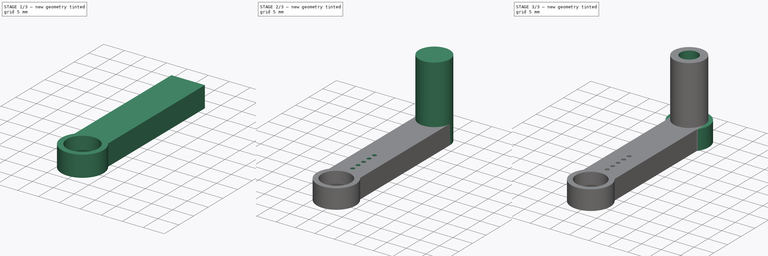
[diagram: build sequence overview — one tinted view per stage of 3, left to right]
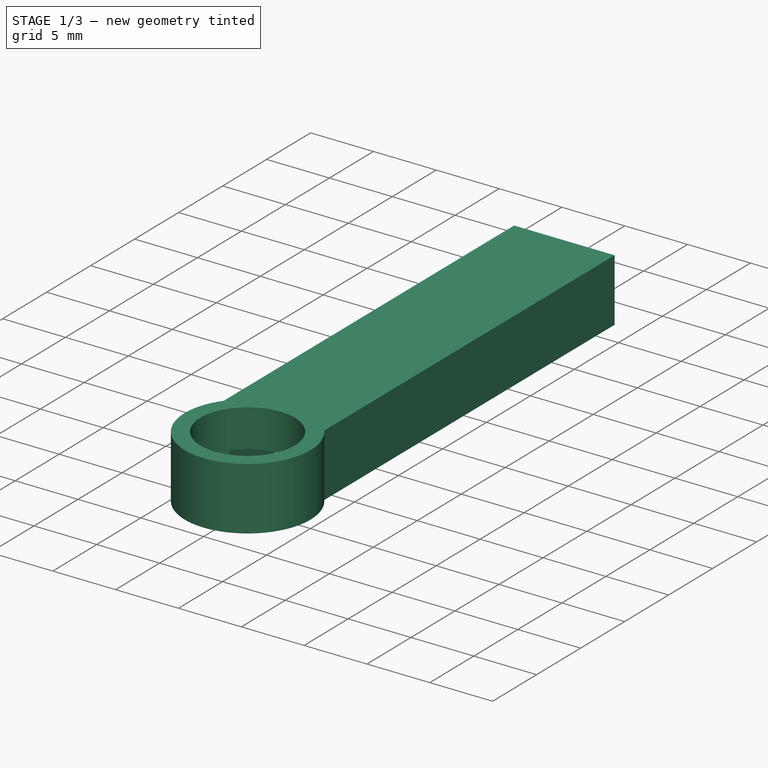
[diagram: stage 1 of 3 — iso view after this stage's code; geometry added in this stage tinted green]
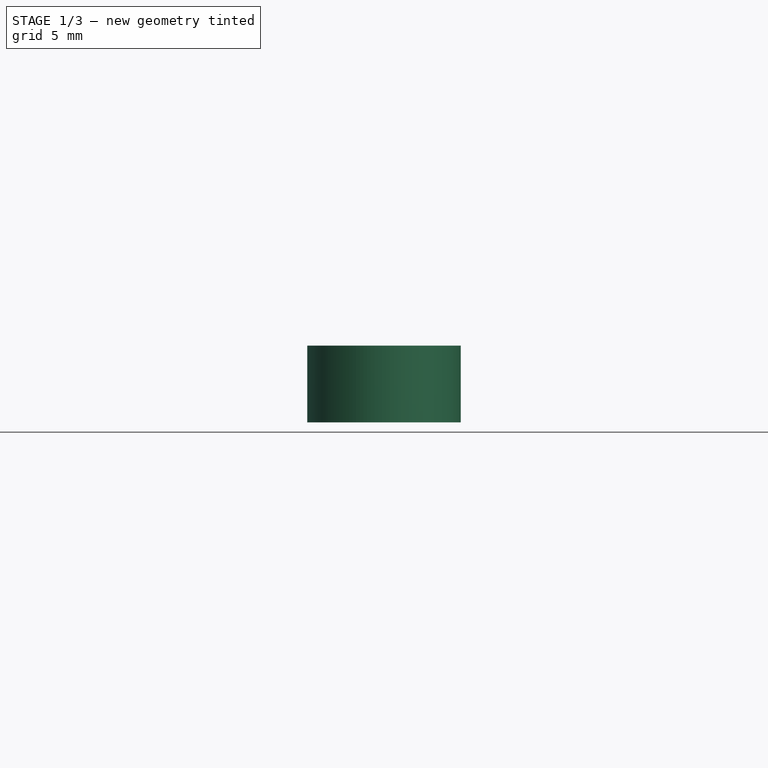
[diagram: stage 1 of 3 — front view after this stage's code; geometry added in this stage tinted green]
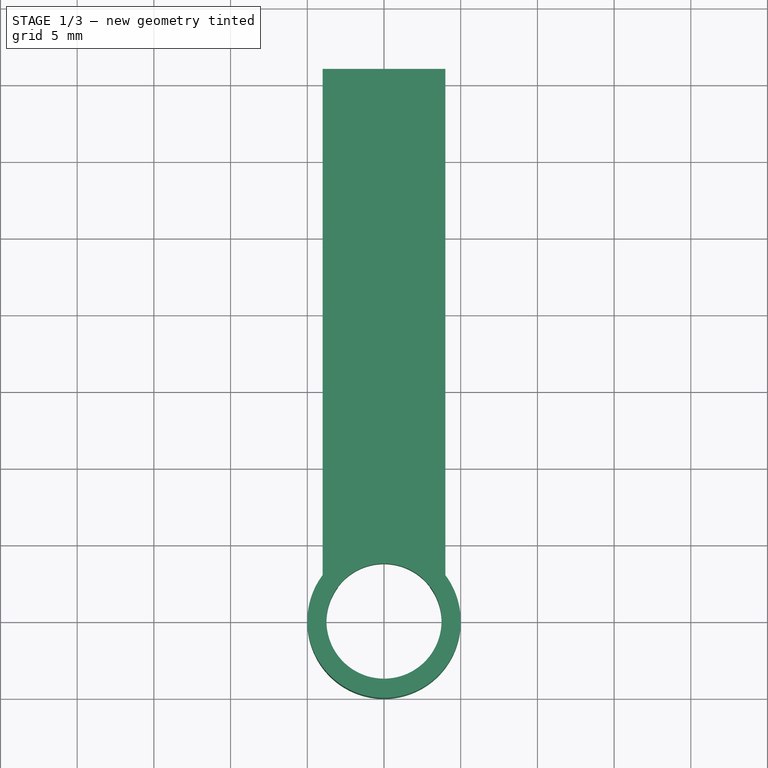
[diagram: stage 1 of 3 — top view after this stage's code; geometry added in this stage tinted green]
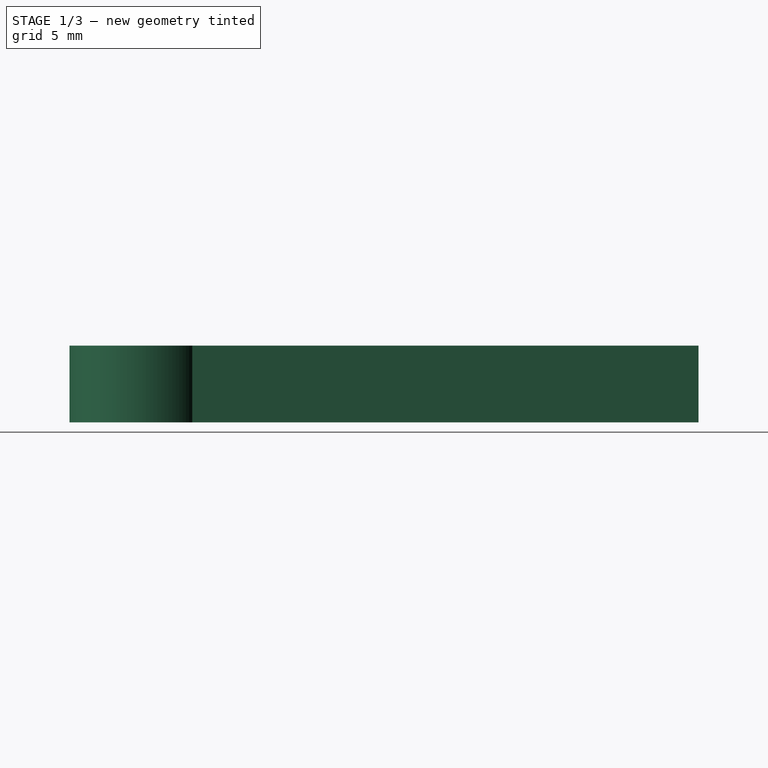
[diagram: stage 1 of 3 — right view after this stage's code; geometry added in this stage tinted green]
FCSTD DOCUMENT  (FreeCAD 1.0R38641 +678 (Git))
Label: lever
License: All rights reserved
LicenseURL: https://en.wikipedia.org/wiki/All_rights_reserved
objects: Sketcher::SketchObject×8, PartDesign::Pad×4, PartDesign::Pocket×4, PartDesign::Body×1
note: 41 computed .brp shape members not serialized (recipe doc carries the construction recipe); baked Part::Feature solids carry a one-line shape summary decoded from their .brp

FEATURE [Sketcher::SketchObject] Sketch066
  ArcFitTolerance = 0
  AttachmentSupport = -> [XY_Plane009]
  FullyConstrained = true
  MakeInternals = false
  MapMode = 5
  sketch-geometry (8):
    g0: ArcOfCircle CenterX=0 CenterY=0 CenterZ=0 NormalX=0 NormalY=0 NormalZ=1 AngleXU=0 Radius=3.75 StartAngle=2.49809 EndAngle=6.92669
    g1: ArcOfCircle CenterX=0 CenterY=14 CenterZ=0 NormalX=0 NormalY=0 NormalZ=1 AngleXU=0 Radius=2.5 StartAngle=8.05833e-06 EndAngle=3.14159
    g2: LineSegment StartX=-3 StartY=2.25 StartZ=0 EndX=-2.5 EndY=14 EndZ=0
    g3: LineSegment StartX=3 StartY=2.25 StartZ=0 EndX=2.5 EndY=14 EndZ=0
    g4: ArcOfCircle CenterX=0 CenterY=0 CenterZ=0 NormalX=0 NormalY=0 NormalZ=1 AngleXU=0 Radius=5 StartAngle=2.49809 EndAngle=6.92669
    g5: LineSegment StartX=-4 StartY=3 StartZ=0 EndX=-4 EndY=36 EndZ=0
    g6: LineSegment StartX=4 StartY=3 StartZ=0 EndX=4 EndY=36 EndZ=0
    g7: LineSegment StartX=-4 StartY=36 StartZ=0 EndX=4 EndY=36 EndZ=0
  constraints (25):
    c: Coincident(g0,g-1)
    c: Diameter(g0) = 7.5
    c: PointOnObject(g1,g-2)
    c: Diameter(g1) = 5
    c: DistanceX(g-2,g2) = -2.5
    c: DistanceX(g-2,g3) = 3
    c: DistanceX(g-2,g2) = -3
    c: Coincident(g0,g3)
    c: Coincident(g0,g2)
    c: Coincident(g1,g2)
    c: Coincident(g1,g3)
    c: DistanceY(g-1,g1) = 14
    c: DistanceX(g-2,g1) = 2.5
    c: Coincident(g4,g0)
    c: Diameter(g4) = 10
    c: Vertical(g5)
    c: Vertical(g6)
    c: Coincident(g7,g5)
    c: Coincident(g7,g6)
    c: Horizontal(g7)
    c: Coincident(g6,g4)
    c: Coincident(g5,g4)
    c: DistanceX(g7,g7) = 8
    c: Distance(g0,g7) = 36
    c: Distance(g0,g5) = 4
FEATURE [PartDesign::Pad] Pad025
  Direction = (0,0,1)
  Length = 5
  Length2 = 10
  Profile = -> Sketch066
  ReferenceAxis = -> Sketch066 [N_Axis]
  Suppressed = false
  Type = 0
FEATURE [Sketcher::SketchObject] Sketch067
  ArcFitTolerance = 0
  AttachmentSupport = -> [Pad025]
  FullyConstrained = true
  MakeInternals = false
  MapMode = 5
  Placement = pos=(0,0,5) rot=(0,0,1;0rad)
  sketch-geometry (4):
    g0: LineSegment StartX=-4 StartY=19 StartZ=0 EndX=4 EndY=19 EndZ=0
    g1: LineSegment StartX=4 StartY=19 StartZ=0 EndX=4 EndY=1 EndZ=0
    g2: LineSegment StartX=4 StartY=1 StartZ=0 EndX=-4 EndY=1 EndZ=0
    g3: LineSegment StartX=-4 StartY=1 StartZ=0 EndX=-4 EndY=19 EndZ=0
  constraints (12):
    c: Coincident(g0,g1)
    c: Coincident(g1,g2)
    c: Coincident(g2,g3)
    c: Coincident(g3,g0)
    c: Horizontal(g0)
    c: Horizontal(g2)
    c: Vertical(g1)
    c: Vertical(g3)
    c: DistanceY(g1,g1) = 18
    c: Distance(g0) = 8
    c: Distance(g-1,g2) = 1
    c: Distance(g-1,g3) = 4
FEATURE [PartDesign::Pad] Pad026
  BaseFeature = -> Pad025
  Direction = (0,0,1)
  Length = 3
  Length2 = 10
  Profile = -> Sketch067
  ReferenceAxis = -> Sketch067 [N_Axis]
  Reversed = true
  Suppressed = false
  Type = 0
FEATURE [Sketcher::SketchObject] Sketch068
  ArcFitTolerance = 0
  AttachmentSupport = -> [Pad026]
  FullyConstrained = true
  MakeInternals = false
  MapMode = 5
  Placement = pos=(0,0,5) rot=(0,0,1;0rad)
  sketch-geometry (1):
    g0: Circle CenterX=0 CenterY=0 CenterZ=0 NormalX=0 NormalY=0 NormalZ=1 AngleXU=0 Radius=3.75
  constraints (2):
    c: Coincident(g0,g-1)
    c: Diameter(g0) = 7.5
FEATURE [PartDesign::Pocket] Pocket024
  BaseFeature = -> Pad026
  Direction = (0,0,-1)
  Length = 5
  Length2 = 5
  Profile = -> Sketch068
  ReferenceAxis = -> Sketch068 [N_Axis]
  Suppressed = false
  Type = 0
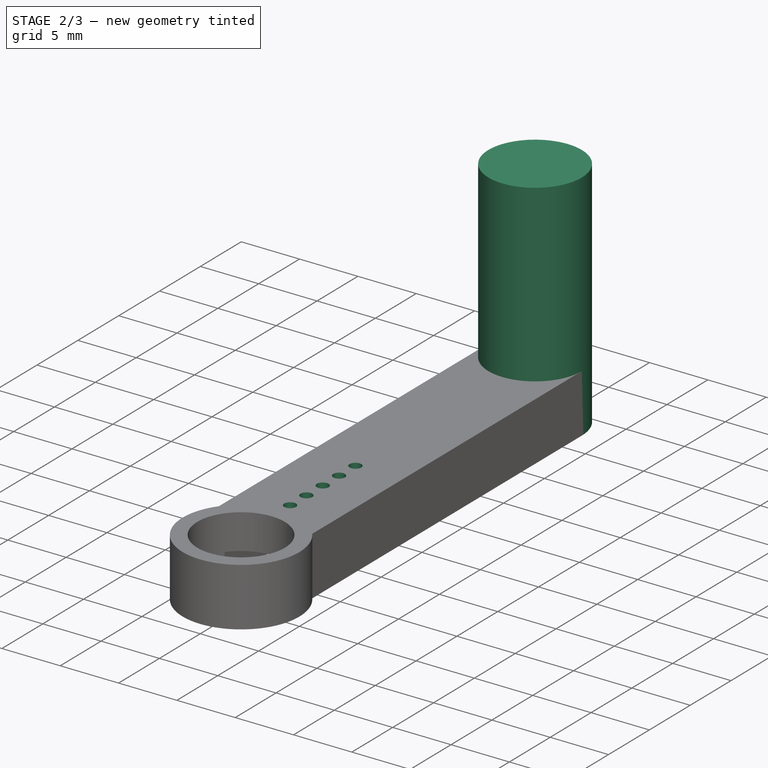
[diagram: stage 2 of 3 — iso view after this stage's code; geometry added in this stage tinted green]
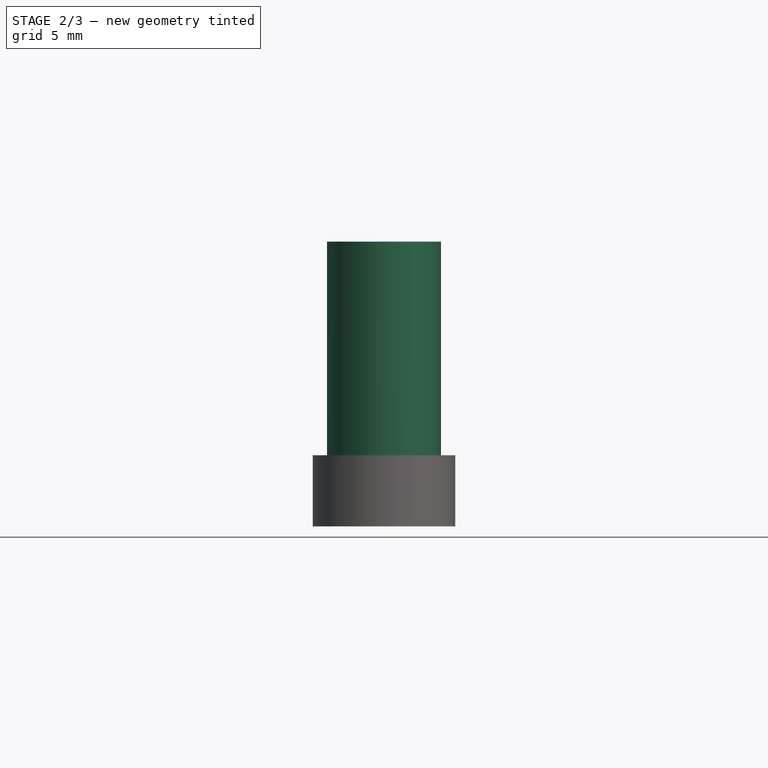
[diagram: stage 2 of 3 — front view after this stage's code; geometry added in this stage tinted green]
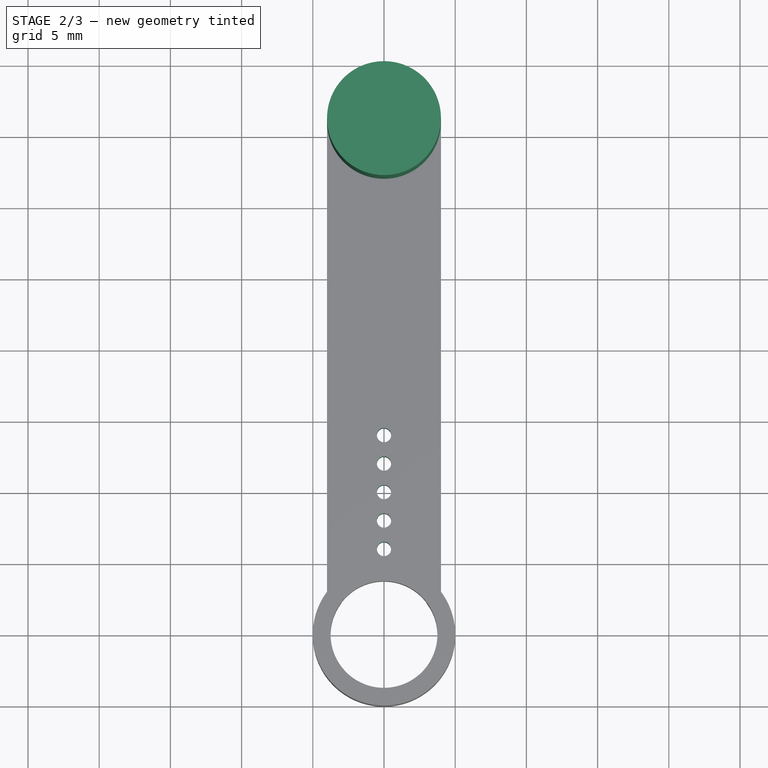
[diagram: stage 2 of 3 — top view after this stage's code; geometry added in this stage tinted green]
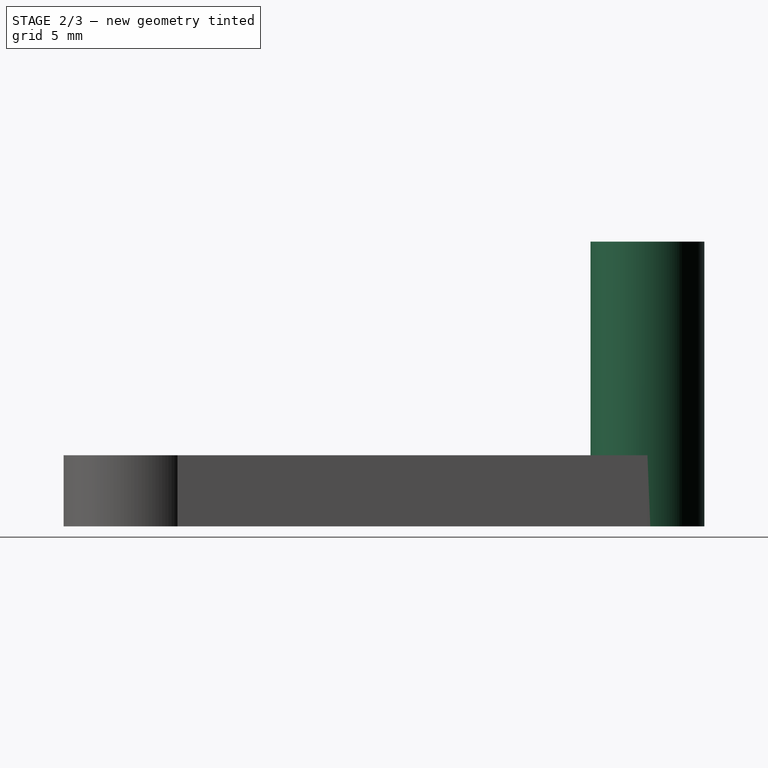
[diagram: stage 2 of 3 — right view after this stage's code; geometry added in this stage tinted green]
FEATURE [Sketcher::SketchObject] Sketch070
  ArcFitTolerance = 0
  AttachmentSupport = -> [Pocket024]
  FullyConstrained = true
  MakeInternals = false
  MapMode = 5
  Placement = pos=(0,0,2) rot=(1,0,0;3.14159rad)
  sketch-geometry (5):
    g0: Circle CenterX=0 CenterY=-6 CenterZ=0 NormalX=0 NormalY=0 NormalZ=1 AngleXU=0 Radius=0.5
    g1: Circle CenterX=0 CenterY=-8 CenterZ=0 NormalX=0 NormalY=0 NormalZ=1 AngleXU=0 Radius=0.5
    g2: Circle CenterX=0 CenterY=-10 CenterZ=0 NormalX=0 NormalY=0 NormalZ=1 AngleXU=0 Radius=0.5
    g3: Circle CenterX=0 CenterY=-12 CenterZ=0 NormalX=0 NormalY=0 NormalZ=1 AngleXU=0 Radius=0.5
    g4: Circle CenterX=0 CenterY=-14 CenterZ=0 NormalX=0 NormalY=0 NormalZ=1 AngleXU=0 Radius=0.5
  constraints (15):
    c: PointOnObject(g0,g-2)
    c: PointOnObject(g1,g-2)
    c: PointOnObject(g2,g-2)
    c: PointOnObject(g3,g-2)
    c: PointOnObject(g4,g-2)
    c: Diameter(g0) = 1
    c: Equal(g0,g1)
    c: Equal(g1,g2)
    c: Equal(g2,g3)
    c: Equal(g3,g4)
    c: Distance(g0,g1) = 2
    c: Distance(g-1,g0) = 6
    c: Distance(g1,g2) = 2
    c: Distance(g2,g3) = 2
    c: Distance(g3,g4) = 2
FEATURE [PartDesign::Pocket] Pocket025
  BaseFeature = -> Pocket024
  Direction = (0,0,1)
  Length = 6
  Length2 = 5
  Profile = -> Sketch070
  ReferenceAxis = -> Sketch070 [N_Axis]
  Suppressed = false
  Type = 0
FEATURE [Sketcher::SketchObject] Sketch089
  ArcFitTolerance = 0
  AttachmentSupport = -> [Pocket025]
  FullyConstrained = true
  MakeInternals = false
  MapMode = 5
  Placement = pos=(0,0,0) rot=(1,0,0;3.14159rad)
  sketch-geometry (1):
    g0: Circle CenterX=0 CenterY=-36 CenterZ=0 NormalX=0 NormalY=0 NormalZ=1 AngleXU=0 Radius=4
  constraints (3):
    c: PointOnObject(g0,g-2)
    c: Diameter(g0) = 8
    c: DistanceY(g-1,g0) = -36
FEATURE [PartDesign::Pad] Pad031
  BaseFeature = -> Pocket025
  Direction = (0,0,-1)
  Length = 20
  Length2 = 5
  Profile = -> Sketch089
  ReferenceAxis = -> Sketch089 [N_Axis]
  Reversed = true
  Suppressed = false
  Type = 0
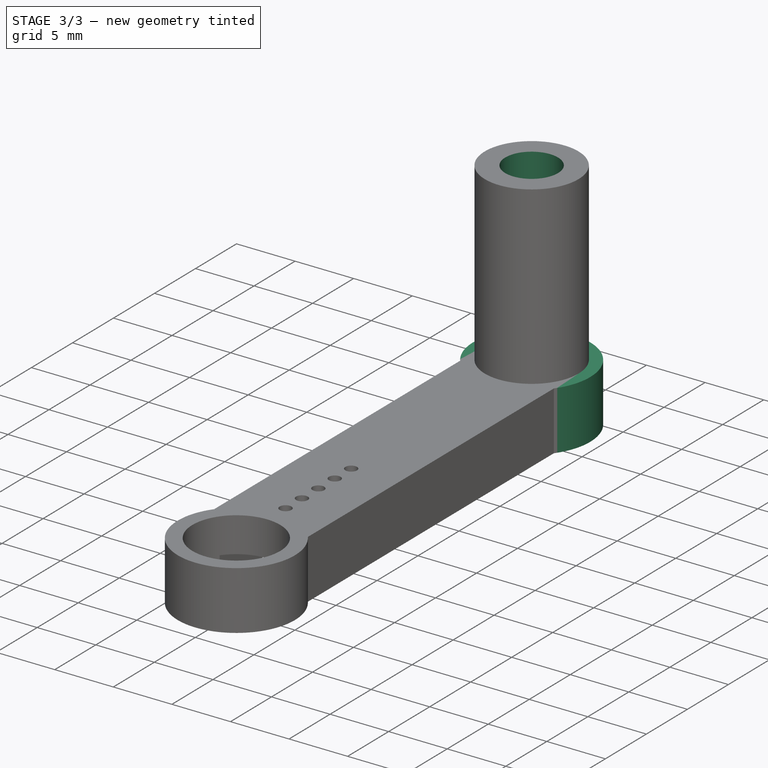
[diagram: stage 3 of 3 — iso view after this stage's code; geometry added in this stage tinted green]
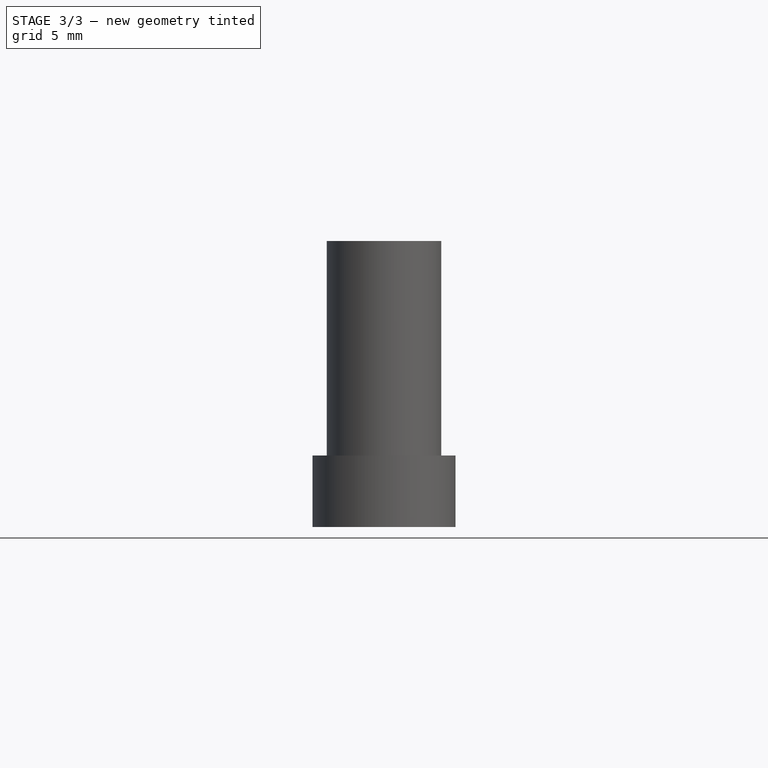
[diagram: stage 3 of 3 — front view after this stage's code; geometry added in this stage tinted green]
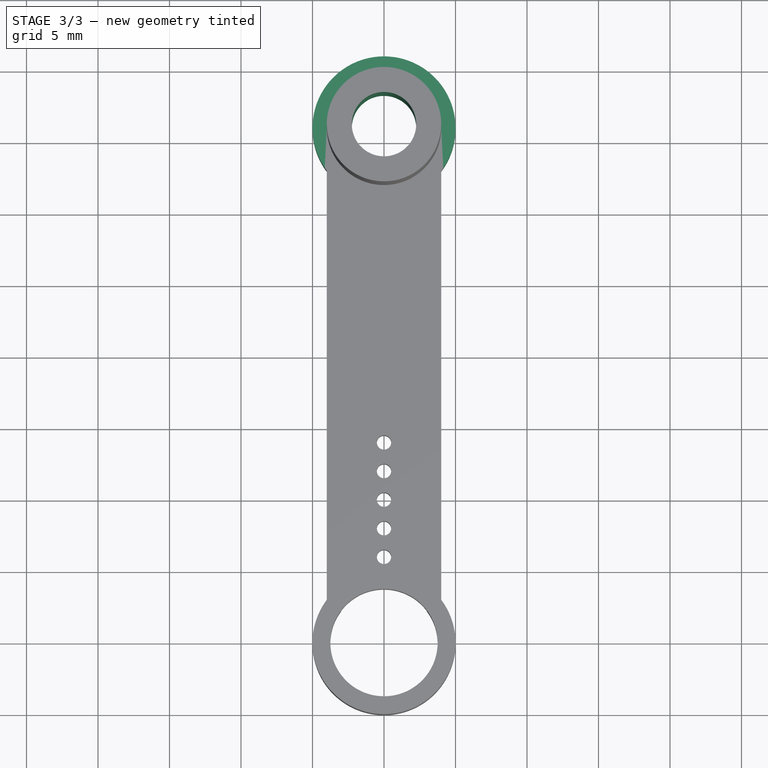
[diagram: stage 3 of 3 — top view after this stage's code; geometry added in this stage tinted green]
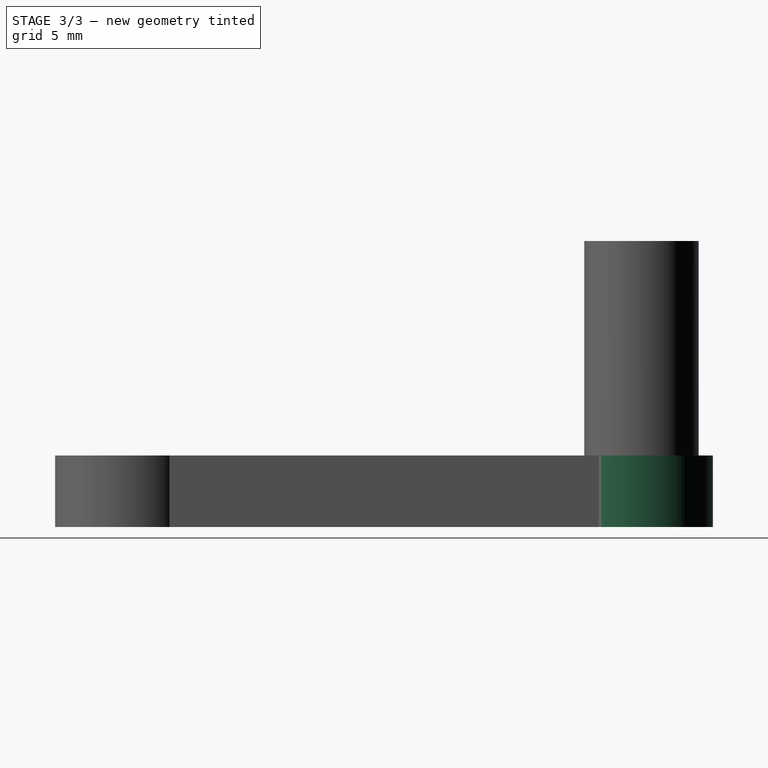
[diagram: stage 3 of 3 — right view after this stage's code; geometry added in this stage tinted green]
FEATURE [Sketcher::SketchObject] Sketch092
  ArcFitTolerance = 0
  AttachmentSupport = -> [Pad031]
  FullyConstrained = true
  MakeInternals = false
  MapMode = 5
  Placement = pos=(0,0,0) rot=(1,0,0;3.14159rad)
  sketch-geometry (1):
    g0: Circle CenterX=0 CenterY=-36 CenterZ=0 NormalX=0 NormalY=0 NormalZ=1 AngleXU=0 Radius=5
  constraints (3):
    c: PointOnObject(g0,g-2)
    c: DistanceY(g-1,g0) = -36
    c: Diameter(g0) = 10
FEATURE [PartDesign::Pad] Pad034
  BaseFeature = -> Pad031
  Direction = (0,0,-1)
  Length = 5
  Length2 = 10
  Profile = -> Sketch092
  ReferenceAxis = -> Sketch092 [N_Axis]
  Reversed = true
  Suppressed = false
  Type = 0
FEATURE [Sketcher::SketchObject] Sketch093
  ArcFitTolerance = 0
  AttachmentSupport = -> [Pad034]
  FullyConstrained = true
  MakeInternals = false
  MapMode = 5
  Placement = pos=(0,0,0) rot=(1,0,0;3.14159rad)
  sketch-geometry (7):
    g0: LineSegment StartX=3.4641 StartY=-38 StartZ=0 EndX=3.4641 EndY=-34 EndZ=0
    g1: LineSegment StartX=3.4641 StartY=-34 StartZ=0 EndX=0 EndY=-32 EndZ=0
    g2: LineSegment StartX=0 StartY=-32 StartZ=0 EndX=-3.4641 EndY=-34 EndZ=0
    g3: LineSegment StartX=-3.4641 StartY=-34 StartZ=0 EndX=-3.4641 EndY=-38 EndZ=0
    g4: LineSegment StartX=-3.4641 StartY=-38 StartZ=0 EndX=0 EndY=-40 EndZ=0
    g5: LineSegment StartX=0 StartY=-40 StartZ=0 EndX=3.4641 EndY=-38 EndZ=0
    g6: Circle [constr] CenterX=0 CenterY=-36 CenterZ=0 NormalX=0 NormalY=0 NormalZ=1 AngleXU=0 Radius=4
  constraints (17):
    c: Coincident(g0,g1)
    c: Coincident(g1,g2)
    c: Coincident(g2,g3)
    c: Coincident(g3,g4)
    c: Coincident(g4,g5)
    c: Coincident(g5,g0)
    c: Equal(g0, g1-g5) x5
    c: PointOnObject(g0,g6)
    c: PointOnObject(g1,g6)
    c: PointOnObject(g2,g6)
    c: PointOnObject(g3,g6)
    c: PointOnObject(g4,g6)
    c: PointOnObject(g5,g6)
    c: PointOnObject(g6,g-2)
    c: Vertical(g0)
    c: Diameter(g6) = 8
    c: DistanceY(g-1,g6) = -36
FEATURE [PartDesign::Pocket] Pocket040
  BaseFeature = -> Pad034
  Direction = (0,0,1)
  Length = 4
  Length2 = 5
  Profile = -> Sketch093
  ReferenceAxis = -> Sketch093 [N_Axis]
  Suppressed = false
  Type = 0
FEATURE [Sketcher::SketchObject] Sketch095
  ArcFitTolerance = 0
  AttachmentSupport = -> [Pocket040]
  FullyConstrained = true
  MakeInternals = false
  MapMode = 5
  Placement = pos=(0,0,4) rot=(1,0,0;3.14159rad)
  sketch-geometry (1):
    g0: Circle CenterX=0 CenterY=-36 CenterZ=0 NormalX=0 NormalY=0 NormalZ=1 AngleXU=0 Radius=2.25
  constraints (3):
    c: PointOnObject(g0,g-2)
    c: Diameter(g0) = 4.5
    c: DistanceY(g-1,g0) = -36
FEATURE [PartDesign::Pocket] Pocket041
  BaseFeature = -> Pocket040
  Direction = (0,0,1)
  Length = 24
  Length2 = 5
  Profile = -> Sketch095
  ReferenceAxis = -> Sketch095 [N_Axis]
  Suppressed = false
  Type = 0
FEATURE [PartDesign::Body] Body009  label="lever"
  AllowCompound = false
  Group = -> [Sketch066,Pad025,Sketch067,Pad026,Sketch068,Pocket024,Sketch070,Pocket025,Sketch089,Pad031,Sketch092,Pad034,Sketch093,Pocket040,Sketch095,Pocket041]
  Origin = -> Origin009
  Placement = pos=(11,90,-17) rot=(0,0,-1;1.5708rad)
  Tip = -> Pocket041
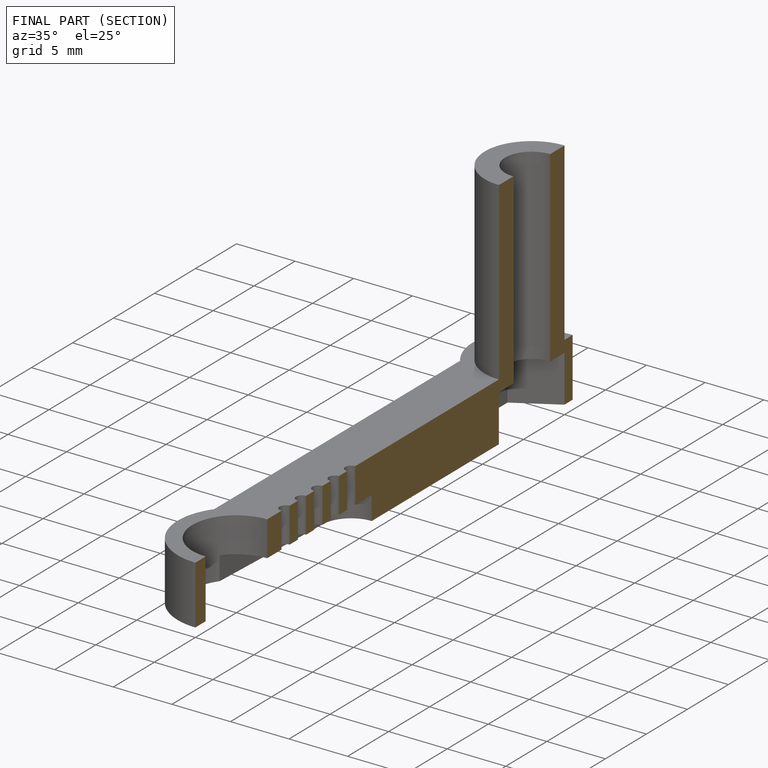
[diagram: finished part — half-section view (interior)]
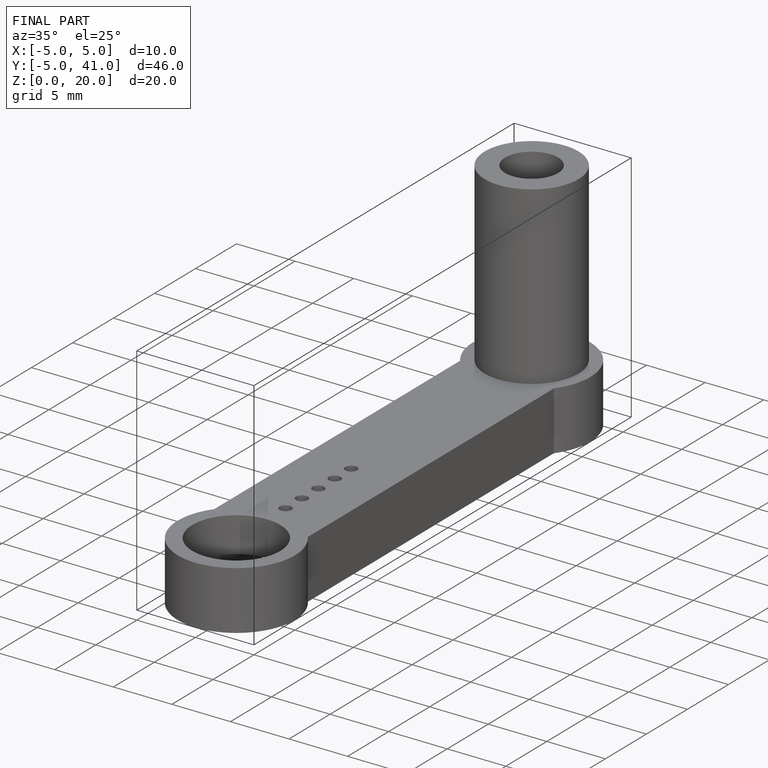
[diagram: finished part — iso view with bounding-box wireframe]
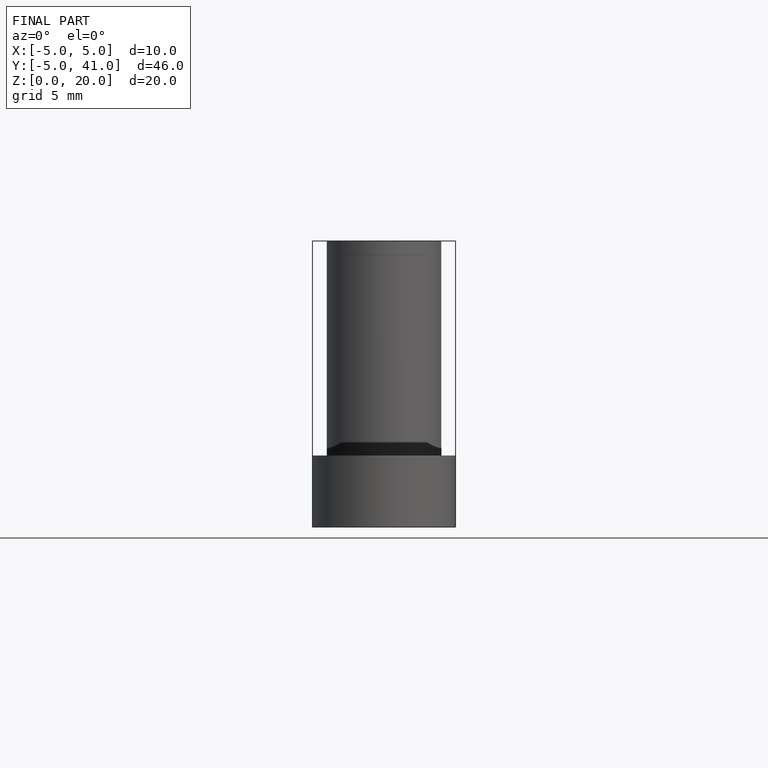
[diagram: finished part — front view with bounding-box wireframe]
